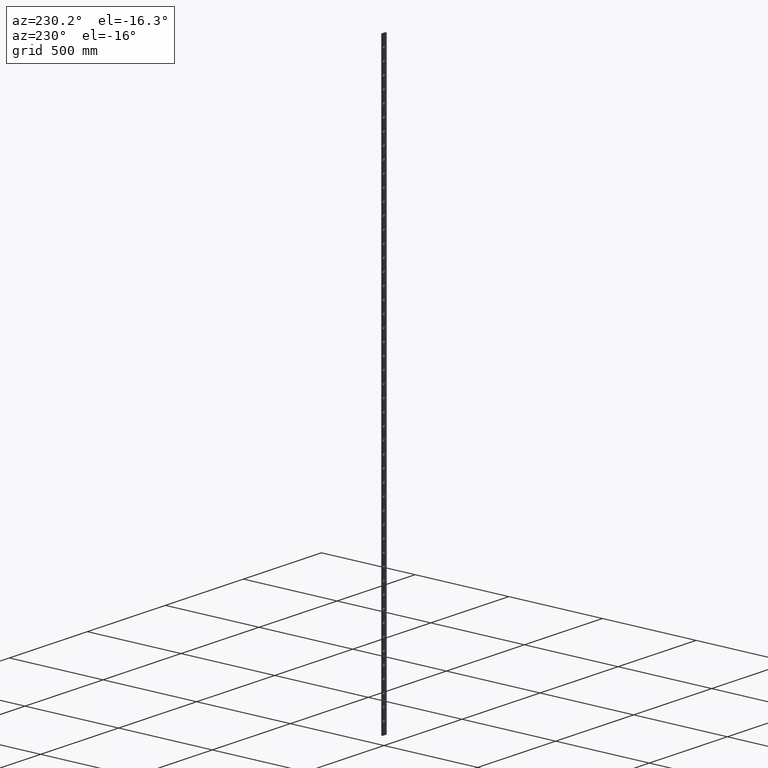
[diagram: clean part render]
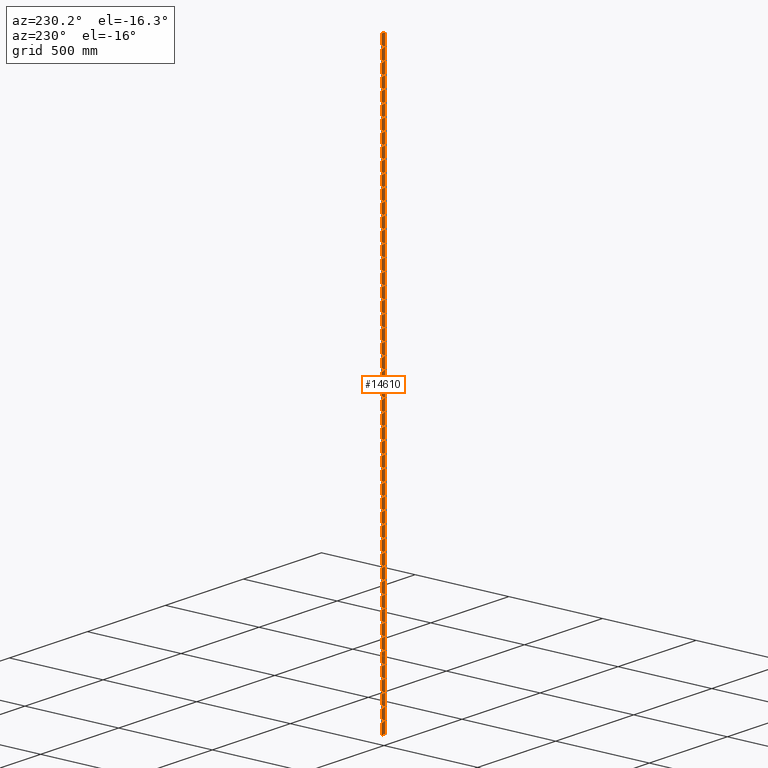
[diagram: same view with one face highlighted and labeled with its STEP entity id]
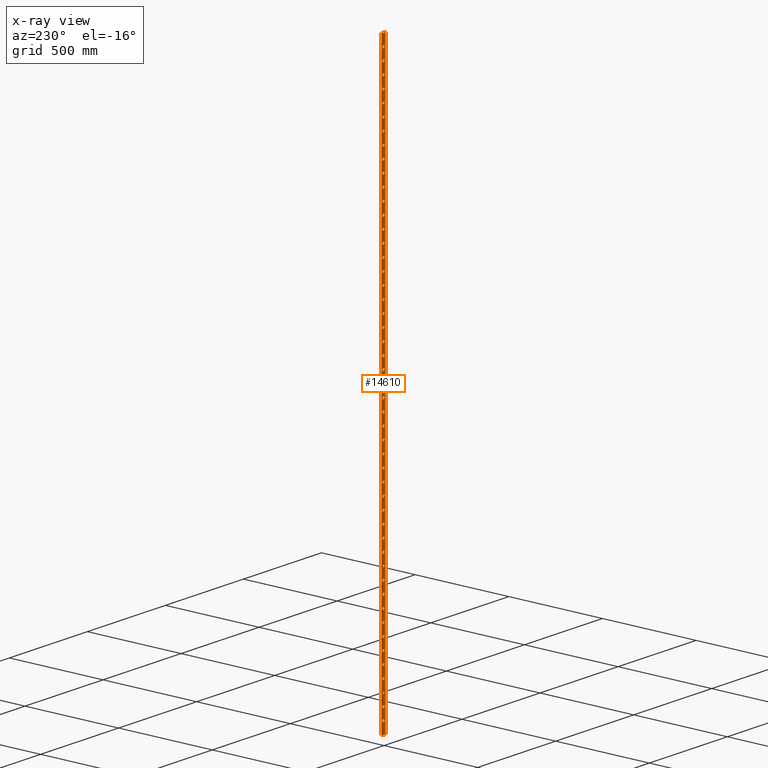
[diagram: x-ray of the same camera — body ghosted, the highlighted face saturated]
A machine part, auxiliary view. The second image highlights one B-rep face of the part: STEP entity #14610.
The next image is the same camera in x-ray: the body ghosted, the highlighted face saturated — about 0% of this face is hidden behind the body in this view.
In plain terms, the highlighted planar face has unit normal (-0, 1, 0).
Its self-contained STEP definition (entity closure, byte-faithful):
#30 = CARTESIAN_POINT ( 'NONE',  ( 0.000000000000000000, 4.000000000000000000, -240.0000000000000000 ) ) ;
#56 = VERTEX_POINT ( 'NONE', #10044 ) ;
#82 = CIRCLE ( 'NONE', #12348, 6.499999999999950262 ) ;
#94 = DIRECTION ( 'NONE',  ( 0.000000000000000000, 1.000000000000000000, 0.000000000000000000 ) ) ;
#108 = FACE_BOUND ( 'NONE', #378, .T. ) ;
#222 = AXIS2_PLACEMENT_3D ( 'NONE', #6658, #7832, #9216 ) ;
#268 = DIRECTION ( 'NONE',  ( 0.000000000000000000, 0.000000000000000000, 1.000000000000000000 ) ) ;
#330 = FACE_BOUND ( 'NONE', #3848, .T. ) ;
#332 = EDGE_LOOP ( 'NONE', ( #14375 ) ) ;
#378 = EDGE_LOOP ( 'NONE', ( #1830 ) ) ;
#379 = AXIS2_PLACEMENT_3D ( 'NONE', #1557, #2806, #4055 ) ;
#474 = CIRCLE ( 'NONE', #9378, 6.499999999999950262 ) ;
#541 = EDGE_CURVE ( 'NONE', #14742, #14742, #15937, .T. ) ;
#555 = ORIENTED_EDGE ( 'NONE', *, *, #11065, .F. ) ;
#556 = DIRECTION ( 'NONE',  ( 0.000000000000000000, 0.000000000000000000, 1.000000000000000000 ) ) ;
#683 = EDGE_LOOP ( 'NONE', ( #7592 ) ) ;
#715 = FACE_BOUND ( 'NONE', #14274, .T. ) ;
#730 = FACE_BOUND ( 'NONE', #12245, .T. ) ;
#864 = CIRCLE ( 'NONE', #12755, 6.499999999999728217 ) ;
#872 = VERTEX_POINT ( 'NONE', #14975 ) ;
#917 = FACE_BOUND ( 'NONE', #13784, .T. ) ;
#931 = ORIENTED_EDGE ( 'NONE', *, *, #8917, .F. ) ;
#936 = ORIENTED_EDGE ( 'NONE', *, *, #8443, .F. ) ;
#974 = EDGE_LOOP ( 'NONE', ( #2305 ) ) ;
#994 = EDGE_CURVE ( 'NONE', #1462, #1462, #13364, .T. ) ;
#1031 = CARTESIAN_POINT ( 'NONE',  ( 0.000000000000000000, 4.000000000000000000, -1193.499999999999773 ) ) ;
#1041 = CARTESIAN_POINT ( 'NONE',  ( 0.000000000000000000, 4.000000000000000000, -1319.999999999999773 ) ) ;
#1079 = CIRCLE ( 'NONE', #6689, 6.499999999999950262 ) ;
#1089 = DIRECTION ( 'NONE',  ( 0.000000000000000000, 0.000000000000000000, 1.000000000000000000 ) ) ;
#1098 = DIRECTION ( 'NONE',  ( 0.000000000000000000, 0.000000000000000000, 1.000000000000000000 ) ) ;
#1104 = FACE_BOUND ( 'NONE', #15059, .T. ) ;
#1139 = CARTESIAN_POINT ( 'NONE',  ( 0.000000000000000000, 4.000000000000000000, -473.5000000000000568 ) ) ;
#1227 = AXIS2_PLACEMENT_3D ( 'NONE', #11664, #10608, #5605 ) ;
#1249 = CARTESIAN_POINT ( 'NONE',  ( 0.000000000000000000, 4.000000000000000000, 1266.500000000000000 ) ) ;
#1291 = AXIS2_PLACEMENT_3D ( 'NONE', #1041, #7407, #1098 ) ;
#1299 = CARTESIAN_POINT ( 'NONE',  ( 0.000000000000000000, 4.000000000000000000, -833.4999999999998863 ) ) ;
#1307 = FACE_BOUND ( 'NONE', #10507, .T. ) ;
#1442 = VERTEX_POINT ( 'NONE', #7447 ) ;
#1444 = EDGE_LOOP ( 'NONE', ( #4796 ) ) ;
#1462 = VERTEX_POINT ( 'NONE', #9828 ) ;
#1518 = DIRECTION ( 'NONE',  ( -2.255140518769849223E-17, 0.000000000000000000, -1.000000000000000000 ) ) ;
#1557 = CARTESIAN_POINT ( 'NONE',  ( 0.000000000000000000, 4.000000000000000000, -120.0000000000001137 ) ) ;
#1622 = AXIS2_PLACEMENT_3D ( 'NONE', #7188, #14612, #8417 ) ;
#1637 = VERTEX_POINT ( 'NONE', #1249 ) ;
#1656 = VERTEX_POINT ( 'NONE', #9988 ) ;
#1671 = CARTESIAN_POINT ( 'NONE',  ( 0.000000000000000000, 4.000000000000000000, 60.00000000000005684 ) ) ;
#1682 = FACE_BOUND ( 'NONE', #3219, .T. ) ;
#1709 = CIRCLE ( 'NONE', #11676, 6.499999999999950262 ) ;
#1713 = CARTESIAN_POINT ( 'NONE',  ( 0.000000000000000000, 4.000000000000000000, 240.0000000000000000 ) ) ;
#1726 = ORIENTED_EDGE ( 'NONE', *, *, #14318, .T. ) ;
#1759 = CARTESIAN_POINT ( 'NONE',  ( 12.49999999999986322, 4.000000000000000000, -1500.000000000000000 ) ) ;
#1765 = DIRECTION ( 'NONE',  ( 0.000000000000000000, 0.000000000000000000, 1.000000000000000000 ) ) ;
#1801 = ORIENTED_EDGE ( 'NONE', *, *, #5748, .F. ) ;
#1830 = ORIENTED_EDGE ( 'NONE', *, *, #10936, .F. ) ;
#1846 = CARTESIAN_POINT ( 'NONE',  ( 0.000000000000000000, 4.000000000000000000, -899.9999999999998863 ) ) ;
#1854 = CARTESIAN_POINT ( 'NONE',  ( 0.000000000000000000, 4.000000000000000000, 720.0000000000000000 ) ) ;
#1895 = EDGE_LOOP ( 'NONE', ( #16244 ) ) ;
#1916 = EDGE_LOOP ( 'NONE', ( #13208 ) ) ;
#1970 = DIRECTION ( 'NONE',  ( 0.000000000000000000, 1.000000000000000000, 0.000000000000000000 ) ) ;
#1976 = DIRECTION ( 'NONE',  ( 0.000000000000000000, 0.000000000000000000, 1.000000000000000000 ) ) ;
#2005 = CIRCLE ( 'NONE', #3827, 6.499999999999950262 ) ;
#2021 = EDGE_LOOP ( 'NONE', ( #8511 ) ) ;
#2023 = DIRECTION ( 'NONE',  ( 0.000000000000000000, 1.000000000000000000, 0.000000000000000000 ) ) ;
#2046 = VERTEX_POINT ( 'NONE', #8514 ) ;
#2067 = AXIS2_PLACEMENT_3D ( 'NONE', #13140, #10775, #14527 ) ;
#2078 = FACE_BOUND ( 'NONE', #2138, .T. ) ;
#2106 = EDGE_LOOP ( 'NONE', ( #9531 ) ) ;
#2124 = CARTESIAN_POINT ( 'NONE',  ( 0.000000000000000000, 4.000000000000000000, 366.4999999999997726 ) ) ;
#2138 = EDGE_LOOP ( 'NONE', ( #11470 ) ) ;
#2214 = EDGE_CURVE ( 'NONE', #7004, #7004, #10380, .T. ) ;
#2223 = EDGE_LOOP ( 'NONE', ( #9928 ) ) ;
#2224 = VERTEX_POINT ( 'NONE', #8877 ) ;
#2254 = EDGE_CURVE ( 'NONE', #8008, #8008, #16083, .T. ) ;
#2260 = ORIENTED_EDGE ( 'NONE', *, *, #5610, .F. ) ;
#2275 = CIRCLE ( 'NONE', #5869, 6.499999999999950262 ) ;
#2285 = CARTESIAN_POINT ( 'NONE',  ( 0.000000000000000000, 4.000000000000000000, 1386.499999999999545 ) ) ;
#2302 = DIRECTION ( 'NONE',  ( 0.000000000000000000, 1.000000000000000000, 0.000000000000000000 ) ) ;
#2305 = ORIENTED_EDGE ( 'NONE', *, *, #10717, .F. ) ;
#2357 = CARTESIAN_POINT ( 'NONE',  ( 0.000000000000000000, 4.000000000000000000, -60.00000000000005684 ) ) ;
#2412 = VERTEX_POINT ( 'NONE', #15028 ) ;
#2496 = CARTESIAN_POINT ( 'NONE',  ( 0.000000000000000000, 4.000000000000000000, -653.5000000000002274 ) ) ;
#2523 = ORIENTED_EDGE ( 'NONE', *, *, #11385, .F. ) ;
#2538 = EDGE_CURVE ( 'NONE', #4604, #4604, #8203, .T. ) ;
#2540 = DIRECTION ( 'NONE',  ( 1.000000000000000000, 0.000000000000000000, 0.000000000000000000 ) ) ;
#2549 = CARTESIAN_POINT ( 'NONE',  ( 0.000000000000000000, 4.000000000000000000, 546.5000000000002274 ) ) ;
#2559 = AXIS2_PLACEMENT_3D ( 'NONE', #30, #3698, #3746 ) ;
#2560 = EDGE_CURVE ( 'NONE', #9789, #9789, #2819, .T. ) ;
#2597 = EDGE_LOOP ( 'NONE', ( #15557 ) ) ;
#2612 = VERTEX_POINT ( 'NONE', #3572 ) ;
#2627 = ORIENTED_EDGE ( 'NONE', *, *, #12959, .F. ) ;
#2632 = ORIENTED_EDGE ( 'NONE', *, *, #13443, .F. ) ;
#2638 = CIRCLE ( 'NONE', #222, 6.499999999999950262 ) ;
#2641 = ORIENTED_EDGE ( 'NONE', *, *, #11442, .F. ) ;
#2663 = FACE_BOUND ( 'NONE', #16240, .T. ) ;
#2715 = DIRECTION ( 'NONE',  ( 0.000000000000000000, 0.000000000000000000, 1.000000000000000000 ) ) ;
#2718 = AXIS2_PLACEMENT_3D ( 'NONE', #14492, #10566, #14276 ) ;
#2750 = CARTESIAN_POINT ( 'NONE',  ( 0.000000000000000000, 4.000000000000000000, 0.000000000000000000 ) ) ;
#2762 = EDGE_LOOP ( 'NONE', ( #3651 ) ) ;
#2778 = AXIS2_PLACEMENT_3D ( 'NONE', #11253, #7542, #5008 ) ;
#2780 = EDGE_CURVE ( 'NONE', #8988, #8988, #864, .T. ) ;
#2806 = DIRECTION ( 'NONE',  ( 0.000000000000000000, 1.000000000000000000, 0.000000000000000000 ) ) ;
#2819 = CIRCLE ( 'NONE', #379, 6.499999999999964473 ) ;
#2825 = VERTEX_POINT ( 'NONE', #1139 ) ;
#2830 = DIRECTION ( 'NONE',  ( 0.000000000000000000, 0.000000000000000000, 1.000000000000000000 ) ) ;
#2861 = FACE_BOUND ( 'NONE', #1895, .T. ) ;
#2885 = EDGE_LOOP ( 'NONE', ( #6013 ) ) ;
#2905 = DIRECTION ( 'NONE',  ( 0.000000000000000000, 1.000000000000000000, 0.000000000000000000 ) ) ;
#2927 = EDGE_LOOP ( 'NONE', ( #6943 ) ) ;
#2952 = ORIENTED_EDGE ( 'NONE', *, *, #3779, .F. ) ;
#3017 = VERTEX_POINT ( 'NONE', #3631 ) ;
#3063 = VECTOR ( 'NONE', #1518, 1000.000000000000000 ) ;
#3161 = EDGE_CURVE ( 'NONE', #9767, #9767, #11349, .T. ) ;
#3214 = DIRECTION ( 'NONE',  ( 0.000000000000000000, 0.000000000000000000, 1.000000000000000000 ) ) ;
#3219 = EDGE_LOOP ( 'NONE', ( #9638 ) ) ;
#3275 = CARTESIAN_POINT ( 'NONE',  ( 0.000000000000000000, 4.000000000000000000, -480.0000000000000000 ) ) ;
#3356 = AXIS2_PLACEMENT_3D ( 'NONE', #8058, #12681, #2715 ) ;
#3389 = VERTEX_POINT ( 'NONE', #10095 ) ;
#3433 = DIRECTION ( 'NONE',  ( 0.000000000000000000, 1.000000000000000000, 0.000000000000000000 ) ) ;
#3469 = CARTESIAN_POINT ( 'NONE',  ( 0.000000000000000000, 4.000000000000000000, -113.5000000000001421 ) ) ;
#3524 = CARTESIAN_POINT ( 'NONE',  ( 0.000000000000000000, 4.000000000000000000, 246.4999999999998863 ) ) ;
#3538 = AXIS2_PLACEMENT_3D ( 'NONE', #2750, #13546, #13752 ) ;
#3551 = EDGE_CURVE ( 'NONE', #11751, #11751, #3953, .T. ) ;
#3558 = EDGE_CURVE ( 'NONE', #9181, #9181, #6563, .T. ) ;
#3572 = CARTESIAN_POINT ( 'NONE',  ( 0.000000000000000000, 4.000000000000000000, 486.4999999999998863 ) ) ;
#3631 = CARTESIAN_POINT ( 'NONE',  ( 0.000000000000000000, 4.000000000000000000, 906.4999999999996589 ) ) ;
#3651 = ORIENTED_EDGE ( 'NONE', *, *, #9861, .F. ) ;
#3693 = DIRECTION ( 'NONE',  ( 0.000000000000000000, 0.000000000000000000, 1.000000000000000000 ) ) ;
#3698 = DIRECTION ( 'NONE',  ( 0.000000000000000000, 1.000000000000000000, 0.000000000000000000 ) ) ;
#3746 = DIRECTION ( 'NONE',  ( 0.000000000000000000, 0.000000000000000000, 1.000000000000000000 ) ) ;
#3762 = CARTESIAN_POINT ( 'NONE',  ( 0.000000000000000000, 4.000000000000000000, 540.0000000000000000 ) ) ;
#3770 = EDGE_CURVE ( 'NONE', #12714, #12714, #13708, .T. ) ;
#3778 = VERTEX_POINT ( 'NONE', #9717 ) ;
#3779 = EDGE_CURVE ( 'NONE', #2046, #2046, #474, .T. ) ;
#3785 = DIRECTION ( 'NONE',  ( 0.000000000000000000, 1.000000000000000000, 0.000000000000000000 ) ) ;
#3795 = CARTESIAN_POINT ( 'NONE',  ( 0.000000000000000000, 4.000000000000000000, -893.5000000000000000 ) ) ;
#3807 = EDGE_CURVE ( 'NONE', #14992, #5606, #5978, .T. ) ;
#3826 = LINE ( 'NONE', #6760, #3063 ) ;
#3827 = AXIS2_PLACEMENT_3D ( 'NONE', #7697, #5221, #14103 ) ;
#3848 = EDGE_LOOP ( 'NONE', ( #7271 ) ) ;
#3865 = CIRCLE ( 'NONE', #11538, 6.499999999999964473 ) ;
#3953 = CIRCLE ( 'NONE', #7057, 6.499999999999950262 ) ;
#4038 = FACE_BOUND ( 'NONE', #11665, .T. ) ;
#4055 = DIRECTION ( 'NONE',  ( 0.000000000000000000, 0.000000000000000000, 1.000000000000000000 ) ) ;
#4060 = EDGE_CURVE ( 'NONE', #6793, #6793, #13109, .T. ) ;
#4109 = AXIS2_PLACEMENT_3D ( 'NONE', #3275, #8251, #7075 ) ;
#4154 = CARTESIAN_POINT ( 'NONE',  ( 12.49999999999986322, 4.000000000000000000, -1500.000000000000000 ) ) ;
#4267 = CARTESIAN_POINT ( 'NONE',  ( 0.000000000000000000, 4.000000000000000000, -600.0000000000001137 ) ) ;
#4327 = ORIENTED_EDGE ( 'NONE', *, *, #2214, .F. ) ;
#4346 = AXIS2_PLACEMENT_3D ( 'NONE', #7297, #16114, #6104 ) ;
#4381 = ORIENTED_EDGE ( 'NONE', *, *, #7973, .T. ) ;
#4407 = CIRCLE ( 'NONE', #11468, 6.499999999999950262 ) ;
#4459 = DIRECTION ( 'NONE',  ( 0.000000000000000000, 0.000000000000000000, 1.000000000000000000 ) ) ;
#4466 = CIRCLE ( 'NONE', #2559, 6.499999999999783284 ) ;
#4480 = DIRECTION ( 'NONE',  ( 0.000000000000000000, 1.000000000000000000, 0.000000000000000000 ) ) ;
#4512 = CARTESIAN_POINT ( 'NONE',  ( 0.000000000000000000, 4.000000000000000000, 960.0000000000000000 ) ) ;
#4532 = DIRECTION ( 'NONE',  ( 0.000000000000000000, 0.000000000000000000, 1.000000000000000000 ) ) ;
#4571 = VERTEX_POINT ( 'NONE', #4856 ) ;
#4585 = VERTEX_POINT ( 'NONE', #15230 ) ;
#4604 = VERTEX_POINT ( 'NONE', #8609 ) ;
#4633 = FACE_BOUND ( 'NONE', #15723, .T. ) ;
#4722 = EDGE_CURVE ( 'NONE', #5606, #13059, #12491, .T. ) ;
#4741 = CARTESIAN_POINT ( 'NONE',  ( 0.000000000000000000, 4.000000000000000000, 1200.000000000000000 ) ) ;
#4773 = AXIS2_PLACEMENT_3D ( 'NONE', #11674, #94, #14154 ) ;
#4796 = ORIENTED_EDGE ( 'NONE', *, *, #3551, .F. ) ;
#4797 = CARTESIAN_POINT ( 'NONE',  ( 0.000000000000000000, 4.000000000000000000, 426.4999999999998295 ) ) ;
#4856 = CARTESIAN_POINT ( 'NONE',  ( 0.000000000000000000, 4.000000000000000000, 786.5000000000000000 ) ) ;
#4931 = DIRECTION ( 'NONE',  ( 0.000000000000000000, 0.000000000000000000, 1.000000000000000000 ) ) ;
#5008 = DIRECTION ( 'NONE',  ( 0.000000000000000000, 0.000000000000000000, 1.000000000000000000 ) ) ;
#5065 = EDGE_CURVE ( 'NONE', #3778, #3778, #2005, .T. ) ;
#5080 = CARTESIAN_POINT ( 'NONE',  ( 0.000000000000000000, 4.000000000000000000, 1446.500000000000000 ) ) ;
#5159 = EDGE_CURVE ( 'NONE', #872, #872, #82, .T. ) ;
#5168 = VERTEX_POINT ( 'NONE', #13812 ) ;
#5221 = DIRECTION ( 'NONE',  ( 0.000000000000000000, 1.000000000000000000, 0.000000000000000000 ) ) ;
#5229 = CARTESIAN_POINT ( 'NONE',  ( 0.000000000000000000, 4.000000000000000000, 0.000000000000000000 ) ) ;
#5257 = DIRECTION ( 'NONE',  ( 0.000000000000000000, 1.000000000000000000, 0.000000000000000000 ) ) ;
#5261 = CIRCLE ( 'NONE', #15684, 6.499999999999783284 ) ;
#5368 = EDGE_CURVE ( 'NONE', #5986, #5986, #11256, .T. ) ;
#5398 = VERTEX_POINT ( 'NONE', #16010 ) ;
#5435 = DIRECTION ( 'NONE',  ( 0.000000000000000000, 0.000000000000000000, 1.000000000000000000 ) ) ;
#5439 = CIRCLE ( 'NONE', #6786, 6.500000000000172307 ) ;
#5445 = FACE_BOUND ( 'NONE', #2927, .T. ) ;
#5455 = CIRCLE ( 'NONE', #7115, 6.499999999999866773 ) ;
#5456 = CARTESIAN_POINT ( 'NONE',  ( 0.000000000000000000, 4.000000000000000000, -1140.000000000000227 ) ) ;
#5464 = EDGE_CURVE ( 'NONE', #13932, #13932, #11441, .T. ) ;
#5520 = CARTESIAN_POINT ( 'NONE',  ( 0.000000000000000000, 4.000000000000000000, 780.0000000000000000 ) ) ;
#5525 = EDGE_LOOP ( 'NONE', ( #12564 ) ) ;
#5553 = CARTESIAN_POINT ( 'NONE',  ( 0.000000000000000000, 4.000000000000000000, 659.9999999999998863 ) ) ;
#5556 = AXIS2_PLACEMENT_3D ( 'NONE', #1713, #8954, #1765 ) ;
#5586 = CARTESIAN_POINT ( 'NONE',  ( 0.000000000000000000, 4.000000000000000000, -779.9999999999997726 ) ) ;
#5592 = VERTEX_POINT ( 'NONE', #7556 ) ;
#5605 = DIRECTION ( 'NONE',  ( 0.000000000000000000, 0.000000000000000000, 1.000000000000000000 ) ) ;
#5606 = VERTEX_POINT ( 'NONE', #13494 ) ;
#5610 = EDGE_CURVE ( 'NONE', #5398, #5398, #3865, .T. ) ;
#5661 = EDGE_LOOP ( 'NONE', ( #11181 ) ) ;
#5748 = EDGE_CURVE ( 'NONE', #3017, #3017, #15591, .T. ) ;
#5798 = VERTEX_POINT ( 'NONE', #7605 ) ;
#5809 = CIRCLE ( 'NONE', #10180, 6.499999999999950262 ) ;
#5843 = DIRECTION ( 'NONE',  ( 0.000000000000000000, 1.000000000000000000, 0.000000000000000000 ) ) ;
#5850 = FACE_BOUND ( 'NONE', #11919, .T. ) ;
#5869 = AXIS2_PLACEMENT_3D ( 'NONE', #5520, #8034, #6634 ) ;
#5901 = CARTESIAN_POINT ( 'NONE',  ( 0.000000000000000000, 4.000000000000000000, 1020.000000000000000 ) ) ;
#5916 = EDGE_CURVE ( 'NONE', #6380, #6380, #15379, .T. ) ;
#5917 = ORIENTED_EDGE ( 'NONE', *, *, #10664, .F. ) ;
#5950 = CARTESIAN_POINT ( 'NONE',  ( 0.000000000000000000, 4.000000000000000000, -720.0000000000002274 ) ) ;
#5978 = LINE ( 'NONE', #4154, #6983 ) ;
#5985 = ORIENTED_EDGE ( 'NONE', *, *, #10863, .F. ) ;
#5986 = VERTEX_POINT ( 'NONE', #14809 ) ;
#6001 = CIRCLE ( 'NONE', #6613, 6.499999999999950262 ) ;
#6013 = ORIENTED_EDGE ( 'NONE', *, *, #7343, .F. ) ;
#6034 = FACE_BOUND ( 'NONE', #683, .T. ) ;
#6041 = CIRCLE ( 'NONE', #2718, 6.499999999999950262 ) ;
#6044 = CARTESIAN_POINT ( 'NONE',  ( 0.000000000000000000, 4.000000000000000000, -713.5000000000002274 ) ) ;
#6066 = CIRCLE ( 'NONE', #2778, 6.499999999999950262 ) ;
#6104 = DIRECTION ( 'NONE',  ( 0.000000000000000000, 0.000000000000000000, 1.000000000000000000 ) ) ;
#6124 = EDGE_LOOP ( 'NONE', ( #555 ) ) ;
#6193 = VERTEX_POINT ( 'NONE', #12679 ) ;
#6263 = CARTESIAN_POINT ( 'NONE',  ( 0.000000000000000000, 4.000000000000000000, 186.4999999999998010 ) ) ;
#6271 = DIRECTION ( 'NONE',  ( 0.000000000000000000, 0.000000000000000000, 1.000000000000000000 ) ) ;
#6287 = DIRECTION ( 'NONE',  ( 0.000000000000000000, 0.000000000000000000, 1.000000000000000000 ) ) ;
#6372 = CARTESIAN_POINT ( 'NONE',  ( -12.49999999999993072, 4.000000000000000000, 1500.000000000000000 ) ) ;
#6380 = VERTEX_POINT ( 'NONE', #16269 ) ;
#6416 = DIRECTION ( 'NONE',  ( 0.000000000000000000, 0.000000000000000000, 1.000000000000000000 ) ) ;
#6439 = EDGE_LOOP ( 'NONE', ( #10586 ) ) ;
#6492 = AXIS2_PLACEMENT_3D ( 'NONE', #5229, #10191, #7378 ) ;
#6541 = EDGE_LOOP ( 'NONE', ( #5985 ) ) ;
#6563 = CIRCLE ( 'NONE', #4773, 6.499999999999783284 ) ;
#6569 = VERTEX_POINT ( 'NONE', #8825 ) ;
#6589 = VERTEX_POINT ( 'NONE', #2549 ) ;
#6601 = CIRCLE ( 'NONE', #7333, 6.499999999999866773 ) ;
#6613 = AXIS2_PLACEMENT_3D ( 'NONE', #11334, #11173, #16184 ) ;
#6626 = FACE_BOUND ( 'NONE', #2597, .T. ) ;
#6634 = DIRECTION ( 'NONE',  ( 0.000000000000000000, 0.000000000000000000, 1.000000000000000000 ) ) ;
#6638 = VERTEX_POINT ( 'NONE', #12809 ) ;
#6637 = ORIENTED_EDGE ( 'NONE', *, *, #2780, .F. ) ;
#6651 = CIRCLE ( 'NONE', #9848, 6.499999999999895195 ) ;
#6658 = CARTESIAN_POINT ( 'NONE',  ( 0.000000000000000000, 4.000000000000000000, 1440.000000000000000 ) ) ;
#6689 = AXIS2_PLACEMENT_3D ( 'NONE', #8871, #10140, #6416 ) ;
#6693 = DIRECTION ( 'NONE',  ( 0.000000000000000000, 1.000000000000000000, 0.000000000000000000 ) ) ;
#6760 = CARTESIAN_POINT ( 'NONE',  ( 12.49999999999993072, 4.000000000000000000, 1500.000000000000000 ) ) ;
#6786 = AXIS2_PLACEMENT_3D ( 'NONE', #3762, #11340, #6287 ) ;
#6791 = EDGE_LOOP ( 'NONE', ( #2641 ) ) ;
#6793 = VERTEX_POINT ( 'NONE', #8460 ) ;
#6810 = DIRECTION ( 'NONE',  ( 0.000000000000000000, 1.000000000000000000, 0.000000000000000000 ) ) ;
#6841 = DIRECTION ( 'NONE',  ( 0.000000000000000000, 1.000000000000000000, 0.000000000000000000 ) ) ;
#6842 = FACE_BOUND ( 'NONE', #14737, .T. ) ;
#6943 = ORIENTED_EDGE ( 'NONE', *, *, #9768, .F. ) ;
#6966 = EDGE_CURVE ( 'NONE', #2612, #2612, #6651, .T. ) ;
#6983 = VECTOR ( 'NONE', #9474, 1000.000000000000000 ) ;
#7004 = VERTEX_POINT ( 'NONE', #6044 ) ;
#7052 = LINE ( 'NONE', #7708, #16323 ) ;
#7057 = AXIS2_PLACEMENT_3D ( 'NONE', #7733, #15414, #268 ) ;
#7072 = CIRCLE ( 'NONE', #9366, 6.499999999999895195 ) ;
#7075 = DIRECTION ( 'NONE',  ( 0.000000000000000000, 0.000000000000000000, 1.000000000000000000 ) ) ;
#7115 = AXIS2_PLACEMENT_3D ( 'NONE', #15510, #5257, #5435 ) ;
#7169 = VECTOR ( 'NONE', #13376, 1000.000000000000000 ) ;
#7188 = CARTESIAN_POINT ( 'NONE',  ( 0.000000000000000000, 4.000000000000000000, 419.9999999999999432 ) ) ;
#7202 = VERTEX_POINT ( 'NONE', #6263 ) ;
#7248 = DIRECTION ( 'NONE',  ( 0.000000000000000000, 0.000000000000000000, 1.000000000000000000 ) ) ;
#7271 = ORIENTED_EDGE ( 'NONE', *, *, #14646, .F. ) ;
#7272 = EDGE_CURVE ( 'NONE', #15293, #15293, #6041, .T. ) ;
#7297 = CARTESIAN_POINT ( 'NONE',  ( 0.000000000000000000, 4.000000000000000000, 840.0000000000000000 ) ) ;
#7333 = AXIS2_PLACEMENT_3D ( 'NONE', #8525, #9781, #6271 ) ;
#7342 = DIRECTION ( 'NONE',  ( 0.000000000000000000, 0.000000000000000000, 1.000000000000000000 ) ) ;
#7343 = EDGE_CURVE ( 'NONE', #10571, #10571, #1709, .T. ) ;
#7362 = AXIS2_PLACEMENT_3D ( 'NONE', #4741, #14978, #3693 ) ;
#7378 = DIRECTION ( 'NONE',  ( 0.000000000000000000, -0.000000000000000000, 1.000000000000000000 ) ) ;
#7407 = DIRECTION ( 'NONE',  ( 0.000000000000000000, 1.000000000000000000, 0.000000000000000000 ) ) ;
#7412 = DIRECTION ( 'NONE',  ( 0.000000000000000000, 1.000000000000000000, 0.000000000000000000 ) ) ;
#7447 = CARTESIAN_POINT ( 'NONE',  ( 0.000000000000000000, 4.000000000000000000, -1433.500000000000000 ) ) ;
#7454 = FACE_BOUND ( 'NONE', #6541, .T. ) ;
#7507 = CARTESIAN_POINT ( 'NONE',  ( 0.000000000000000000, 4.000000000000000000, -533.5000000000001137 ) ) ;
#7542 = DIRECTION ( 'NONE',  ( 0.000000000000000000, 1.000000000000000000, 0.000000000000000000 ) ) ;
#7556 = CARTESIAN_POINT ( 'NONE',  ( 0.000000000000000000, 4.000000000000000000, 606.5000000000001137 ) ) ;
#7588 = AXIS2_PLACEMENT_3D ( 'NONE', #14015, #3785, #12674 ) ;
#7592 = ORIENTED_EDGE ( 'NONE', *, *, #2538, .F. ) ;
#7593 = VERTEX_POINT ( 'NONE', #11209 ) ;
#7605 = CARTESIAN_POINT ( 'NONE',  ( 0.000000000000000000, 4.000000000000000000, 66.49999999999991473 ) ) ;
#7638 = ORIENTED_EDGE ( 'NONE', *, *, #14092, .F. ) ;
#7642 = FACE_BOUND ( 'NONE', #11715, .T. ) ;
#7662 = EDGE_CURVE ( 'NONE', #7202, #7202, #5455, .T. ) ;
#7697 = CARTESIAN_POINT ( 'NONE',  ( 0.000000000000000000, 4.000000000000000000, -960.0000000000000000 ) ) ;
#7708 = CARTESIAN_POINT ( 'NONE',  ( -12.49999999999993072, 4.000000000000000000, 1500.000000000000000 ) ) ;
#7733 = CARTESIAN_POINT ( 'NONE',  ( 0.000000000000000000, 4.000000000000000000, -1199.999999999999773 ) ) ;
#7766 = ORIENTED_EDGE ( 'NONE', *, *, #3558, .F. ) ;
#7770 = DIRECTION ( 'NONE',  ( 0.000000000000000000, 0.000000000000000000, 1.000000000000000000 ) ) ;
#7832 = DIRECTION ( 'NONE',  ( 0.000000000000000000, 1.000000000000000000, 0.000000000000000000 ) ) ;
#7861 = AXIS2_PLACEMENT_3D ( 'NONE', #1671, #6810, #10534 ) ;
#7916 = EDGE_LOOP ( 'NONE', ( #5917 ) ) ;
#7973 = EDGE_CURVE ( 'NONE', #13059, #6638, #7052, .T. ) ;
#7989 = VERTEX_POINT ( 'NONE', #2496 ) ;
#7997 = CIRCLE ( 'NONE', #7861, 6.499999999999866773 ) ;
#8008 = VERTEX_POINT ( 'NONE', #13477 ) ;
#8034 = DIRECTION ( 'NONE',  ( 0.000000000000000000, 1.000000000000000000, 0.000000000000000000 ) ) ;
#8042 = FACE_BOUND ( 'NONE', #15756, .T. ) ;
#8058 = CARTESIAN_POINT ( 'NONE',  ( 0.000000000000000000, 4.000000000000000000, -1080.000000000000000 ) ) ;
#8079 = DIRECTION ( 'NONE',  ( 0.000000000000000000, 1.000000000000000000, 0.000000000000000000 ) ) ;
#8160 = ORIENTED_EDGE ( 'NONE', *, *, #4060, .F. ) ;
#8197 = EDGE_CURVE ( 'NONE', #6589, #6589, #5439, .T. ) ;
#8200 = CIRCLE ( 'NONE', #4109, 6.499999999999950262 ) ;
#8203 = CIRCLE ( 'NONE', #14035, 6.499999999999950262 ) ;
#8214 = EDGE_LOOP ( 'NONE', ( #16347 ) ) ;
#8237 = DIRECTION ( 'NONE',  ( 0.000000000000000000, 1.000000000000000000, 0.000000000000000000 ) ) ;
#8251 = DIRECTION ( 'NONE',  ( 0.000000000000000000, 1.000000000000000000, 0.000000000000000000 ) ) ;
#8404 = CARTESIAN_POINT ( 'NONE',  ( 0.000000000000000000, 4.000000000000000000, 480.0000000000000000 ) ) ;
#8417 = DIRECTION ( 'NONE',  ( 0.000000000000000000, 0.000000000000000000, 1.000000000000000000 ) ) ;
#8443 = EDGE_CURVE ( 'NONE', #15883, #15883, #11190, .T. ) ;
#8460 = CARTESIAN_POINT ( 'NONE',  ( 0.000000000000000000, 4.000000000000000000, 726.4999999999998863 ) ) ;
#8511 = ORIENTED_EDGE ( 'NONE', *, *, #994, .F. ) ;
#8514 = CARTESIAN_POINT ( 'NONE',  ( 0.000000000000000000, 4.000000000000000000, 1326.499999999999773 ) ) ;
#8525 = CARTESIAN_POINT ( 'NONE',  ( 0.000000000000000000, 4.000000000000000000, 120.0000000000001137 ) ) ;
#8547 = AXIS2_PLACEMENT_3D ( 'NONE', #4267, #8079, #10562 ) ;
#8555 = EDGE_LOOP ( 'NONE', ( #4327 ) ) ;
#8587 = CIRCLE ( 'NONE', #9876, 6.499999999999950262 ) ;
#8596 = CIRCLE ( 'NONE', #8859, 6.499999999999950262 ) ;
#8609 = CARTESIAN_POINT ( 'NONE',  ( 0.000000000000000000, 4.000000000000000000, -1373.500000000000000 ) ) ;
#8781 = CARTESIAN_POINT ( 'NONE',  ( -12.49999999999993072, 4.000000000000000000, 1500.000000000000000 ) ) ;
#8812 = FACE_BOUND ( 'NONE', #6791, .T. ) ;
#8825 = CARTESIAN_POINT ( 'NONE',  ( 0.000000000000000000, 4.000000000000000000, -1013.500000000000114 ) ) ;
#8832 = FACE_BOUND ( 'NONE', #6124, .T. ) ;
#8859 = AXIS2_PLACEMENT_3D ( 'NONE', #5553, #12985, #556 ) ;
#8871 = CARTESIAN_POINT ( 'NONE',  ( 0.000000000000000000, 4.000000000000000000, -419.9999999999999432 ) ) ;
#8877 = CARTESIAN_POINT ( 'NONE',  ( 0.000000000000000000, 4.000000000000000000, -293.5000000000002842 ) ) ;
#8917 = EDGE_CURVE ( 'NONE', #1656, #1656, #14749, .T. ) ;
#8927 = CARTESIAN_POINT ( 'NONE',  ( 0.000000000000000000, 4.000000000000000000, -233.5000000000001990 ) ) ;
#8954 = DIRECTION ( 'NONE',  ( 0.000000000000000000, 1.000000000000000000, 0.000000000000000000 ) ) ;
#8967 = VERTEX_POINT ( 'NONE', #3795 ) ;
#8988 = VERTEX_POINT ( 'NONE', #2285 ) ;
#9055 = DIRECTION ( 'NONE',  ( 0.000000000000000000, 1.000000000000000000, 0.000000000000000000 ) ) ;
#9180 = DIRECTION ( 'NONE',  ( 0.000000000000000000, 0.000000000000000000, 1.000000000000000000 ) ) ;
#9181 = VERTEX_POINT ( 'NONE', #12258 ) ;
#9211 = FACE_BOUND ( 'NONE', #332, .T. ) ;
#9216 = DIRECTION ( 'NONE',  ( 0.000000000000000000, 0.000000000000000000, 1.000000000000000000 ) ) ;
#9224 = ORIENTED_EDGE ( 'NONE', *, *, #541, .F. ) ;
#9366 = AXIS2_PLACEMENT_3D ( 'NONE', #15948, #14420, #4532 ) ;
#9378 = AXIS2_PLACEMENT_3D ( 'NONE', #13150, #2023, #1089 ) ;
#9381 = DIRECTION ( 'NONE',  ( 0.000000000000000000, 0.000000000000000000, 1.000000000000000000 ) ) ;
#9419 = FACE_BOUND ( 'NONE', #13639, .T. ) ;
#9474 = DIRECTION ( 'NONE',  ( -1.000000000000000000, 0.000000000000000000, 0.000000000000000000 ) ) ;
#9531 = ORIENTED_EDGE ( 'NONE', *, *, #5916, .F. ) ;
#9595 = EDGE_LOOP ( 'NONE', ( #1801 ) ) ;
#9638 = ORIENTED_EDGE ( 'NONE', *, *, #10529, .F. ) ;
#9717 = CARTESIAN_POINT ( 'NONE',  ( 0.000000000000000000, 4.000000000000000000, -953.5000000000000000 ) ) ;
#9767 = VERTEX_POINT ( 'NONE', #2124 ) ;
#9768 = EDGE_CURVE ( 'NONE', #5798, #5798, #7997, .T. ) ;
#9781 = DIRECTION ( 'NONE',  ( 0.000000000000000000, 1.000000000000000000, 0.000000000000000000 ) ) ;
#9789 = VERTEX_POINT ( 'NONE', #3469 ) ;
#9817 = FACE_OUTER_BOUND ( 'NONE', #15680, .T. ) ;
#9828 = CARTESIAN_POINT ( 'NONE',  ( 0.000000000000000000, 4.000000000000000000, 846.5000000000001137 ) ) ;
#9848 = AXIS2_PLACEMENT_3D ( 'NONE', #8404, #12357, #7342 ) ;
#9861 = EDGE_CURVE ( 'NONE', #3389, #3389, #8587, .T. ) ;
#9876 = AXIS2_PLACEMENT_3D ( 'NONE', #4512, #15701, #4459 ) ;
#9915 = ORIENTED_EDGE ( 'NONE', *, *, #2254, .F. ) ;
#9928 = ORIENTED_EDGE ( 'NONE', *, *, #5065, .F. ) ;
#9949 = DIRECTION ( 'NONE',  ( 0.000000000000000000, 0.000000000000000000, 1.000000000000000000 ) ) ;
#9988 = CARTESIAN_POINT ( 'NONE',  ( 0.000000000000000000, 4.000000000000000000, -1073.500000000000227 ) ) ;
#10021 = FACE_BOUND ( 'NONE', #11099, .T. ) ;
#10032 = ORIENTED_EDGE ( 'NONE', *, *, #13181, .F. ) ;
#10044 = CARTESIAN_POINT ( 'NONE',  ( 0.000000000000000000, 4.000000000000000000, 126.4999999999999716 ) ) ;
#10095 = CARTESIAN_POINT ( 'NONE',  ( 0.000000000000000000, 4.000000000000000000, 966.4999999999998863 ) ) ;
#10140 = DIRECTION ( 'NONE',  ( 0.000000000000000000, 1.000000000000000000, 0.000000000000000000 ) ) ;
#10180 = AXIS2_PLACEMENT_3D ( 'NONE', #12853, #8237, #2830 ) ;
#10191 = DIRECTION ( 'NONE',  ( -0.000000000000000000, 1.000000000000000000, 0.000000000000000000 ) ) ;
#10213 = FACE_BOUND ( 'NONE', #974, .T. ) ;
#10289 = AXIS2_PLACEMENT_3D ( 'NONE', #14874, #15090, #16128 ) ;
#10310 = DIRECTION ( 'NONE',  ( 0.000000000000000000, 0.000000000000000000, 1.000000000000000000 ) ) ;
#10348 = DIRECTION ( 'NONE',  ( 0.000000000000000000, 0.000000000000000000, 1.000000000000000000 ) ) ;
#10380 = CIRCLE ( 'NONE', #12541, 6.499999999999950262 ) ;
#10410 = FACE_BOUND ( 'NONE', #2106, .T. ) ;
#10419 = EDGE_CURVE ( 'NONE', #2825, #2825, #8200, .T. ) ;
#10455 = AXIS2_PLACEMENT_3D ( 'NONE', #16191, #15051, #4931 ) ;
#10507 = EDGE_LOOP ( 'NONE', ( #9224 ) ) ;
#10529 = EDGE_CURVE ( 'NONE', #56, #56, #6601, .T. ) ;
#10534 = DIRECTION ( 'NONE',  ( 0.000000000000000000, 0.000000000000000000, 1.000000000000000000 ) ) ;
#10536 = DIRECTION ( 'NONE',  ( 0.000000000000000000, 1.000000000000000000, 0.000000000000000000 ) ) ;
#10540 = EDGE_LOOP ( 'NONE', ( #15578 ) ) ;
#10562 = DIRECTION ( 'NONE',  ( 0.000000000000000000, 0.000000000000000000, 1.000000000000000000 ) ) ;
#10566 = DIRECTION ( 'NONE',  ( 0.000000000000000000, 1.000000000000000000, 0.000000000000000000 ) ) ;
#10571 = VERTEX_POINT ( 'NONE', #13862 ) ;
#10586 = ORIENTED_EDGE ( 'NONE', *, *, #3161, .F. ) ;
#10600 = FACE_BOUND ( 'NONE', #8555, .T. ) ;
#10608 = DIRECTION ( 'NONE',  ( 0.000000000000000000, 1.000000000000000000, 0.000000000000000000 ) ) ;
#10642 = EDGE_CURVE ( 'NONE', #8967, #8967, #12923, .T. ) ;
#10664 = EDGE_CURVE ( 'NONE', #11355, #11355, #2638, .T. ) ;
#10699 = EDGE_LOOP ( 'NONE', ( #931 ) ) ;
#10717 = EDGE_CURVE ( 'NONE', #7989, #7989, #5809, .T. ) ;
#10775 = DIRECTION ( 'NONE',  ( 0.000000000000000000, 1.000000000000000000, 0.000000000000000000 ) ) ;
#10796 = CIRCLE ( 'NONE', #1227, 6.499999999999950262 ) ;
#10823 = FACE_BOUND ( 'NONE', #2885, .T. ) ;
#10863 = EDGE_CURVE ( 'NONE', #13126, #13126, #1079, .T. ) ;
#10936 = EDGE_CURVE ( 'NONE', #5592, #5592, #12523, .T. ) ;
#10956 = VERTEX_POINT ( 'NONE', #7507 ) ;
#11016 = FACE_BOUND ( 'NONE', #15821, .T. ) ;
#11064 = CIRCLE ( 'NONE', #1291, 6.499999999999950262 ) ;
#11065 = EDGE_CURVE ( 'NONE', #4585, #4585, #4407, .T. ) ;
#11070 = DIRECTION ( 'NONE',  ( 0.000000000000000000, 0.000000000000000000, 1.000000000000000000 ) ) ;
#11099 = EDGE_LOOP ( 'NONE', ( #13267 ) ) ;
#11169 = DIRECTION ( 'NONE',  ( 0.000000000000000000, 1.000000000000000000, 0.000000000000000000 ) ) ;
#11173 = DIRECTION ( 'NONE',  ( 0.000000000000000000, 1.000000000000000000, 0.000000000000000000 ) ) ;
#11181 = ORIENTED_EDGE ( 'NONE', *, *, #16231, .F. ) ;
#11190 = CIRCLE ( 'NONE', #10289, 6.499999999999950262 ) ;
#11209 = CARTESIAN_POINT ( 'NONE',  ( 0.000000000000000000, 4.000000000000000000, 306.4999999999999432 ) ) ;
#11253 = CARTESIAN_POINT ( 'NONE',  ( 0.000000000000000000, 4.000000000000000000, 1080.000000000000000 ) ) ;
#11256 = CIRCLE ( 'NONE', #7588, 6.499999999999950262 ) ;
#11334 = CARTESIAN_POINT ( 'NONE',  ( 0.000000000000000000, 4.000000000000000000, -540.0000000000000000 ) ) ;
#11340 = DIRECTION ( 'NONE',  ( 0.000000000000000000, 1.000000000000000000, 0.000000000000000000 ) ) ;
#11349 = CIRCLE ( 'NONE', #10455, 6.499999999999895195 ) ;
#11355 = VERTEX_POINT ( 'NONE', #5080 ) ;
#11383 = AXIS2_PLACEMENT_3D ( 'NONE', #15436, #10536, #10310 ) ;
#11385 = EDGE_CURVE ( 'NONE', #2224, #2224, #5261, .T. ) ;
#11441 = CIRCLE ( 'NONE', #5556, 6.499999999999895195 ) ;
#11442 = EDGE_CURVE ( 'NONE', #5168, #5168, #11064, .T. ) ;
#11468 = AXIS2_PLACEMENT_3D ( 'NONE', #5586, #15704, #13237 ) ;
#11470 = ORIENTED_EDGE ( 'NONE', *, *, #15289, .F. ) ;
#11538 = AXIS2_PLACEMENT_3D ( 'NONE', #2357, #3433, #9949 ) ;
#11602 = FACE_BOUND ( 'NONE', #12148, .T. ) ;
#11664 = CARTESIAN_POINT ( 'NONE',  ( 0.000000000000000000, 4.000000000000000000, -1440.000000000000000 ) ) ;
#11665 = EDGE_LOOP ( 'NONE', ( #9915 ) ) ;
#11674 = CARTESIAN_POINT ( 'NONE',  ( 0.000000000000000000, 4.000000000000000000, -179.9999999999999432 ) ) ;
#11676 = AXIS2_PLACEMENT_3D ( 'NONE', #14439, #1970, #3214 ) ;
#11715 = EDGE_LOOP ( 'NONE', ( #7638 ) ) ;
#11751 = VERTEX_POINT ( 'NONE', #1031 ) ;
#11804 = FACE_BOUND ( 'NONE', #2021, .T. ) ;
#11886 = DIRECTION ( 'NONE',  ( 0.000000000000000000, 0.000000000000000000, 1.000000000000000000 ) ) ;
#11919 = EDGE_LOOP ( 'NONE', ( #936 ) ) ;
#12087 = CARTESIAN_POINT ( 'NONE',  ( 0.000000000000000000, 4.000000000000000000, 899.9999999999998863 ) ) ;
#12148 = EDGE_LOOP ( 'NONE', ( #13885 ) ) ;
#12180 = FACE_BOUND ( 'NONE', #1444, .T. ) ;
#12194 = FACE_BOUND ( 'NONE', #1916, .T. ) ;
#12245 = EDGE_LOOP ( 'NONE', ( #6637 ) ) ;
#12258 = CARTESIAN_POINT ( 'NONE',  ( 0.000000000000000000, 4.000000000000000000, -173.5000000000001421 ) ) ;
#12348 = AXIS2_PLACEMENT_3D ( 'NONE', #5456, #14332, #9180 ) ;
#12357 = DIRECTION ( 'NONE',  ( 0.000000000000000000, 1.000000000000000000, 0.000000000000000000 ) ) ;
#12371 = FACE_BOUND ( 'NONE', #7916, .T. ) ;
#12491 = LINE ( 'NONE', #8781, #7169 ) ;
#12523 = CIRCLE ( 'NONE', #11383, 6.500000000000172307 ) ;
#12534 = ORIENTED_EDGE ( 'NONE', *, *, #8197, .F. ) ;
#12541 = AXIS2_PLACEMENT_3D ( 'NONE', #5950, #7412, #11070 ) ;
#12564 = ORIENTED_EDGE ( 'NONE', *, *, #15431, .F. ) ;
#12674 = DIRECTION ( 'NONE',  ( 0.000000000000000000, 0.000000000000000000, 1.000000000000000000 ) ) ;
#12679 = CARTESIAN_POINT ( 'NONE',  ( 0.000000000000000000, 4.000000000000000000, 1086.500000000000000 ) ) ;
#12681 = DIRECTION ( 'NONE',  ( 0.000000000000000000, 1.000000000000000000, 0.000000000000000000 ) ) ;
#12714 = VERTEX_POINT ( 'NONE', #16052 ) ;
#12717 = ORIENTED_EDGE ( 'NONE', *, *, #7272, .F. ) ;
#12755 = AXIS2_PLACEMENT_3D ( 'NONE', #15461, #2905, #11886 ) ;
#12809 = CARTESIAN_POINT ( 'NONE',  ( 12.49999999999993072, 4.000000000000000000, 1500.000000000000000 ) ) ;
#12853 = CARTESIAN_POINT ( 'NONE',  ( 0.000000000000000000, 4.000000000000000000, -660.0000000000001137 ) ) ;
#12863 = ORIENTED_EDGE ( 'NONE', *, *, #15967, .F. ) ;
#12889 = PLANE ( 'NONE',  #6492 ) ;
#12904 = AXIS2_PLACEMENT_3D ( 'NONE', #12087, #4480, #9381 ) ;
#12914 = VERTEX_POINT ( 'NONE', #15076 ) ;
#12923 = CIRCLE ( 'NONE', #16317, 6.499999999999950262 ) ;
#12933 = VERTEX_POINT ( 'NONE', #8927 ) ;
#12959 = EDGE_CURVE ( 'NONE', #12933, #12933, #4466, .T. ) ;
#12985 = DIRECTION ( 'NONE',  ( 0.000000000000000000, 1.000000000000000000, 0.000000000000000000 ) ) ;
#12991 = AXIS2_PLACEMENT_3D ( 'NONE', #1854, #6841, #13209 ) ;
#13059 = VERTEX_POINT ( 'NONE', #6372 ) ;
#13109 = CIRCLE ( 'NONE', #12991, 6.499999999999950262 ) ;
#13126 = VERTEX_POINT ( 'NONE', #13968 ) ;
#13140 = CARTESIAN_POINT ( 'NONE',  ( 0.000000000000000000, 4.000000000000000000, -1020.000000000000000 ) ) ;
#13150 = CARTESIAN_POINT ( 'NONE',  ( 0.000000000000000000, 4.000000000000000000, 1319.999999999999773 ) ) ;
#13160 = CIRCLE ( 'NONE', #2067, 6.499999999999950262 ) ;
#13171 = ORIENTED_EDGE ( 'NONE', *, *, #3770, .F. ) ;
#13179 = FACE_BOUND ( 'NONE', #16140, .T. ) ;
#13181 = EDGE_CURVE ( 'NONE', #7593, #7593, #7072, .T. ) ;
#13208 = ORIENTED_EDGE ( 'NONE', *, *, #10642, .F. ) ;
#13209 = DIRECTION ( 'NONE',  ( 0.000000000000000000, 0.000000000000000000, 1.000000000000000000 ) ) ;
#13237 = DIRECTION ( 'NONE',  ( 0.000000000000000000, 0.000000000000000000, 1.000000000000000000 ) ) ;
#13267 = ORIENTED_EDGE ( 'NONE', *, *, #7662, .F. ) ;
#13364 = CIRCLE ( 'NONE', #4346, 6.500000000000172307 ) ;
#13376 = DIRECTION ( 'NONE',  ( -2.255140518769849223E-17, -0.000000000000000000, 1.000000000000000000 ) ) ;
#13389 = FACE_BOUND ( 'NONE', #5661, .T. ) ;
#13408 = AXIS2_PLACEMENT_3D ( 'NONE', #5901, #2302, #16235 ) ;
#13443 = EDGE_CURVE ( 'NONE', #6193, #6193, #6066, .T. ) ;
#13477 = CARTESIAN_POINT ( 'NONE',  ( 0.000000000000000000, 4.000000000000000000, 1026.500000000000000 ) ) ;
#13494 = CARTESIAN_POINT ( 'NONE',  ( -12.49999999999986322, 4.000000000000000000, -1500.000000000000000 ) ) ;
#13546 = DIRECTION ( 'NONE',  ( 0.000000000000000000, 1.000000000000000000, 0.000000000000000000 ) ) ;
#13639 = EDGE_LOOP ( 'NONE', ( #2523 ) ) ;
#13708 = CIRCLE ( 'NONE', #8547, 6.499999999999950262 ) ;
#13752 = DIRECTION ( 'NONE',  ( 0.000000000000000000, 0.000000000000000000, 1.000000000000000000 ) ) ;
#13771 = FACE_BOUND ( 'NONE', #10699, .T. ) ;
#13784 = EDGE_LOOP ( 'NONE', ( #2952 ) ) ;
#13788 = FACE_BOUND ( 'NONE', #9595, .T. ) ;
#13812 = CARTESIAN_POINT ( 'NONE',  ( 0.000000000000000000, 4.000000000000000000, -1313.500000000000000 ) ) ;
#13862 = CARTESIAN_POINT ( 'NONE',  ( 0.000000000000000000, 4.000000000000000000, 1146.499999999999773 ) ) ;
#13885 = ORIENTED_EDGE ( 'NONE', *, *, #10419, .F. ) ;
#13895 = EDGE_LOOP ( 'NONE', ( #10032 ) ) ;
#13932 = VERTEX_POINT ( 'NONE', #3524 ) ;
#13968 = CARTESIAN_POINT ( 'NONE',  ( 0.000000000000000000, 4.000000000000000000, -413.5000000000000000 ) ) ;
#13976 = FACE_BOUND ( 'NONE', #8214, .T. ) ;
#14015 = CARTESIAN_POINT ( 'NONE',  ( 0.000000000000000000, 4.000000000000000000, -359.9999999999998863 ) ) ;
#14035 = AXIS2_PLACEMENT_3D ( 'NONE', #14342, #6693, #10348 ) ;
#14092 = EDGE_CURVE ( 'NONE', #12914, #12914, #15564, .T. ) ;
#14103 = DIRECTION ( 'NONE',  ( 0.000000000000000000, 0.000000000000000000, 1.000000000000000000 ) ) ;
#14154 = DIRECTION ( 'NONE',  ( 0.000000000000000000, 0.000000000000000000, 1.000000000000000000 ) ) ;
#14271 = AXIS2_PLACEMENT_3D ( 'NONE', #16233, #11169, #7248 ) ;
#14274 = EDGE_LOOP ( 'NONE', ( #15747 ) ) ;
#14276 = DIRECTION ( 'NONE',  ( 0.000000000000000000, 0.000000000000000000, 1.000000000000000000 ) ) ;
#14318 = EDGE_CURVE ( 'NONE', #6638, #14992, #3826, .T. ) ;
#14332 = DIRECTION ( 'NONE',  ( 0.000000000000000000, 1.000000000000000000, 0.000000000000000000 ) ) ;
#14342 = CARTESIAN_POINT ( 'NONE',  ( 0.000000000000000000, 4.000000000000000000, -1380.000000000000000 ) ) ;
#14375 = ORIENTED_EDGE ( 'NONE', *, *, #6966, .F. ) ;
#14382 = FACE_BOUND ( 'NONE', #2762, .T. ) ;
#14420 = DIRECTION ( 'NONE',  ( 0.000000000000000000, 1.000000000000000000, 0.000000000000000000 ) ) ;
#14439 = CARTESIAN_POINT ( 'NONE',  ( 0.000000000000000000, 4.000000000000000000, 1140.000000000000000 ) ) ;
#14492 = CARTESIAN_POINT ( 'NONE',  ( 0.000000000000000000, 4.000000000000000000, -839.9999999999998863 ) ) ;
#14527 = DIRECTION ( 'NONE',  ( 0.000000000000000000, 0.000000000000000000, 1.000000000000000000 ) ) ;
#14571 = FACE_BOUND ( 'NONE', #6439, .T. ) ;
#14610 = ADVANCED_FACE ( 'NONE', ( #6034, #5850, #14776, #15727, #12194, #8832, #10213, #8042, #7454, #9419, #13179, #4633, #5445, #10021, #15158, #1307, #108, #2663, #11804, #14382, #11016, #7642, #917, #6842, #9817, #12371, #730, #13976, #10823, #4038, #13788, #330, #13389, #9211, #14571, #2861, #1682, #10410, #6626, #15536, #715, #11602, #15340, #10600, #1104, #15140, #13771, #12180, #8812, #2078 ), #12889, .T. ) ;
#14612 = DIRECTION ( 'NONE',  ( 0.000000000000000000, 1.000000000000000000, 0.000000000000000000 ) ) ;
#14646 = EDGE_CURVE ( 'NONE', #4571, #4571, #2275, .T. ) ;
#14737 = EDGE_LOOP ( 'NONE', ( #12534 ) ) ;
#14742 = VERTEX_POINT ( 'NONE', #4797 ) ;
#14749 = CIRCLE ( 'NONE', #3356, 6.499999999999950262 ) ;
#14776 = FACE_BOUND ( 'NONE', #10540, .T. ) ;
#14809 = CARTESIAN_POINT ( 'NONE',  ( 0.000000000000000000, 4.000000000000000000, -353.4999999999999432 ) ) ;
#14874 = CARTESIAN_POINT ( 'NONE',  ( 0.000000000000000000, 4.000000000000000000, -1259.999999999999773 ) ) ;
#14975 = CARTESIAN_POINT ( 'NONE',  ( 0.000000000000000000, 4.000000000000000000, -1133.500000000000227 ) ) ;
#14978 = DIRECTION ( 'NONE',  ( 0.000000000000000000, 1.000000000000000000, 0.000000000000000000 ) ) ;
#14992 = VERTEX_POINT ( 'NONE', #1759 ) ;
#15028 = CARTESIAN_POINT ( 'NONE',  ( 0.000000000000000000, 4.000000000000000000, 666.4999999999998863 ) ) ;
#15051 = DIRECTION ( 'NONE',  ( 0.000000000000000000, 1.000000000000000000, 0.000000000000000000 ) ) ;
#15059 = EDGE_LOOP ( 'NONE', ( #12717 ) ) ;
#15076 = CARTESIAN_POINT ( 'NONE',  ( 0.000000000000000000, 4.000000000000000000, 1206.500000000000000 ) ) ;
#15090 = DIRECTION ( 'NONE',  ( 0.000000000000000000, 1.000000000000000000, 0.000000000000000000 ) ) ;
#15127 = CIRCLE ( 'NONE', #14271, 6.499999999999950262 ) ;
#15140 = FACE_BOUND ( 'NONE', #2223, .T. ) ;
#15158 = FACE_BOUND ( 'NONE', #13895, .T. ) ;
#15181 = CARTESIAN_POINT ( 'NONE',  ( 0.000000000000000000, 4.000000000000000000, -1253.499999999999773 ) ) ;
#15230 = CARTESIAN_POINT ( 'NONE',  ( 0.000000000000000000, 4.000000000000000000, -773.4999999999998863 ) ) ;
#15289 = EDGE_CURVE ( 'NONE', #1442, #1442, #10796, .T. ) ;
#15293 = VERTEX_POINT ( 'NONE', #1299 ) ;
#15340 = FACE_BOUND ( 'NONE', #16039, .T. ) ;
#15379 = CIRCLE ( 'NONE', #3538, 6.499999999999902300 ) ;
#15414 = DIRECTION ( 'NONE',  ( 0.000000000000000000, 1.000000000000000000, 0.000000000000000000 ) ) ;
#15431 = EDGE_CURVE ( 'NONE', #6569, #6569, #13160, .T. ) ;
#15436 = CARTESIAN_POINT ( 'NONE',  ( 0.000000000000000000, 4.000000000000000000, 600.0000000000000000 ) ) ;
#15461 = CARTESIAN_POINT ( 'NONE',  ( 0.000000000000000000, 4.000000000000000000, 1380.000000000000000 ) ) ;
#15510 = CARTESIAN_POINT ( 'NONE',  ( 0.000000000000000000, 4.000000000000000000, 179.9999999999999432 ) ) ;
#15536 = FACE_BOUND ( 'NONE', #15951, .T. ) ;
#15557 = ORIENTED_EDGE ( 'NONE', *, *, #2560, .F. ) ;
#15564 = CIRCLE ( 'NONE', #7362, 6.499999999999950262 ) ;
#15578 = ORIENTED_EDGE ( 'NONE', *, *, #5159, .F. ) ;
#15591 = CIRCLE ( 'NONE', #12904, 6.499999999999728217 ) ;
#15680 = EDGE_LOOP ( 'NONE', ( #4381, #1726, #15992, #16062 ) ) ;
#15684 = AXIS2_PLACEMENT_3D ( 'NONE', #16064, #5843, #1976 ) ;
#15701 = DIRECTION ( 'NONE',  ( 0.000000000000000000, 1.000000000000000000, 0.000000000000000000 ) ) ;
#15704 = DIRECTION ( 'NONE',  ( 0.000000000000000000, 1.000000000000000000, 0.000000000000000000 ) ) ;
#15723 = EDGE_LOOP ( 'NONE', ( #2260 ) ) ;
#15727 = FACE_BOUND ( 'NONE', #5525, .T. ) ;
#15747 = ORIENTED_EDGE ( 'NONE', *, *, #5368, .F. ) ;
#15756 = EDGE_LOOP ( 'NONE', ( #12863 ) ) ;
#15821 = EDGE_LOOP ( 'NONE', ( #2632 ) ) ;
#15883 = VERTEX_POINT ( 'NONE', #15181 ) ;
#15903 = EDGE_CURVE ( 'NONE', #1637, #1637, #15127, .T. ) ;
#15937 = CIRCLE ( 'NONE', #1622, 6.499999999999895195 ) ;
#15948 = CARTESIAN_POINT ( 'NONE',  ( 0.000000000000000000, 4.000000000000000000, 300.0000000000000568 ) ) ;
#15951 = EDGE_LOOP ( 'NONE', ( #2627 ) ) ;
#15967 = EDGE_CURVE ( 'NONE', #10956, #10956, #6001, .T. ) ;
#15992 = ORIENTED_EDGE ( 'NONE', *, *, #3807, .T. ) ;
#16010 = CARTESIAN_POINT ( 'NONE',  ( 0.000000000000000000, 4.000000000000000000, -53.50000000000009237 ) ) ;
#16039 = EDGE_LOOP ( 'NONE', ( #13171 ) ) ;
#16052 = CARTESIAN_POINT ( 'NONE',  ( 0.000000000000000000, 4.000000000000000000, -593.5000000000001137 ) ) ;
#16062 = ORIENTED_EDGE ( 'NONE', *, *, #4722, .T. ) ;
#16064 = CARTESIAN_POINT ( 'NONE',  ( 0.000000000000000000, 4.000000000000000000, -300.0000000000000568 ) ) ;
#16083 = CIRCLE ( 'NONE', #13408, 6.499999999999950262 ) ;
#16114 = DIRECTION ( 'NONE',  ( 0.000000000000000000, 1.000000000000000000, 0.000000000000000000 ) ) ;
#16128 = DIRECTION ( 'NONE',  ( 0.000000000000000000, 0.000000000000000000, 1.000000000000000000 ) ) ;
#16140 = EDGE_LOOP ( 'NONE', ( #7766 ) ) ;
#16184 = DIRECTION ( 'NONE',  ( 0.000000000000000000, 0.000000000000000000, 1.000000000000000000 ) ) ;
#16191 = CARTESIAN_POINT ( 'NONE',  ( 0.000000000000000000, 4.000000000000000000, 359.9999999999998863 ) ) ;
#16231 = EDGE_CURVE ( 'NONE', #2412, #2412, #8596, .T. ) ;
#16233 = CARTESIAN_POINT ( 'NONE',  ( 0.000000000000000000, 4.000000000000000000, 1260.000000000000000 ) ) ;
#16235 = DIRECTION ( 'NONE',  ( 0.000000000000000000, 0.000000000000000000, 1.000000000000000000 ) ) ;
#16240 = EDGE_LOOP ( 'NONE', ( #8160 ) ) ;
#16244 = ORIENTED_EDGE ( 'NONE', *, *, #5464, .F. ) ;
#16269 = CARTESIAN_POINT ( 'NONE',  ( 0.000000000000000000, 4.000000000000000000, 6.499999999999902300 ) ) ;
#16317 = AXIS2_PLACEMENT_3D ( 'NONE', #1846, #9055, #7770 ) ;
#16323 = VECTOR ( 'NONE', #2540, 1000.000000000000000 ) ;
#16347 = ORIENTED_EDGE ( 'NONE', *, *, #15903, .F. ) ;